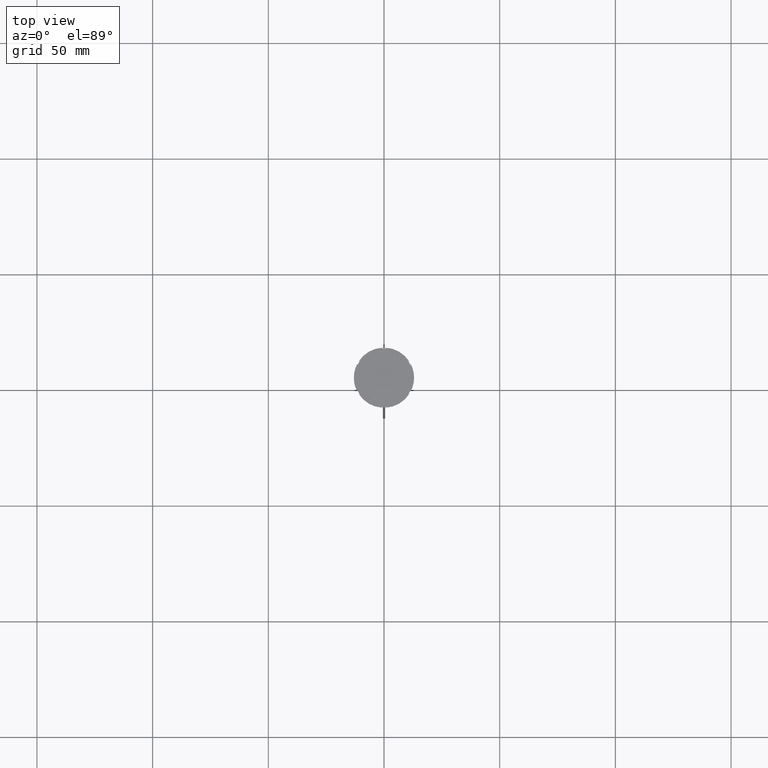
[diagram: clean part render]
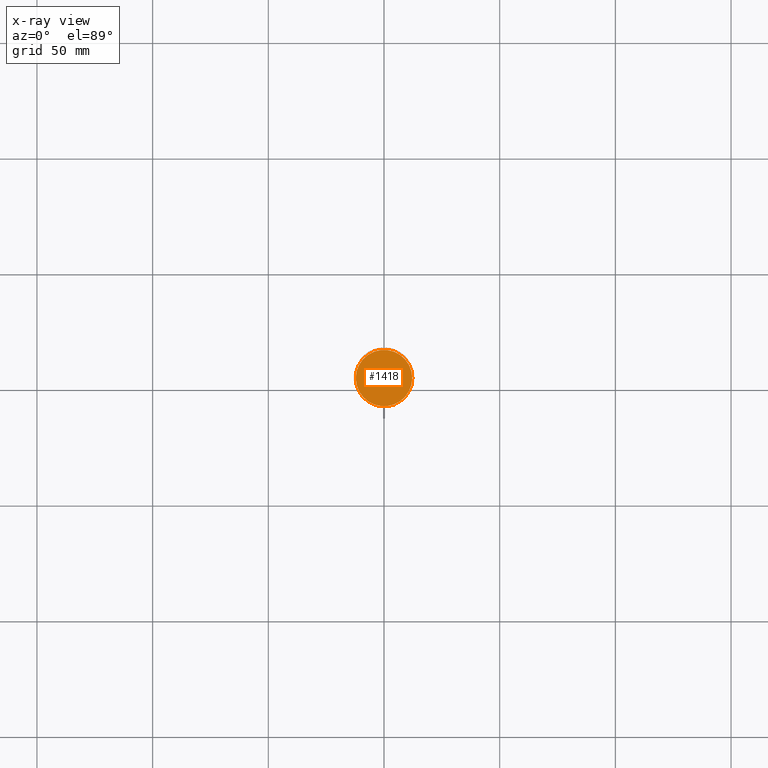
[diagram: x-ray — body ghosted, one internal face saturated and labeled with its STEP entity id]
A machine part, top view, then the same camera in x-ray: the body is ghosted and one INTERNAL B-rep face — a face not visible from any outside direction — is saturated and labeled: STEP entity #1418.
In plain terms, the highlighted planar face has unit normal (0, 0, -1).
Its self-contained STEP definition (entity closure, byte-faithful):
#29 = DIRECTION ( 'NONE',  ( -0.000000000000000000, -0.000000000000000000, 1.000000000000000000 ) ) ;
#47 = CARTESIAN_POINT ( 'NONE',  ( 0.000000000000000000, 0.000000000000000000, -12.00000000000000000 ) ) ;
#213 = CIRCLE ( 'NONE', #1475, 12.20000000000000639 ) ;
#276 = DIRECTION ( 'NONE',  ( -0.000000000000000000, -0.000000000000000000, 1.000000000000000000 ) ) ;
#417 = VERTEX_POINT ( 'NONE', #572 ) ;
#466 = CARTESIAN_POINT ( 'NONE',  ( 0.000000000000000000, 0.000000000000000000, -12.00000000000000000 ) ) ;
#537 = EDGE_CURVE ( 'NONE', #1689, #417, #2690, .T. ) ;
#566 = AXIS2_PLACEMENT_3D ( 'NONE', #47, #1775, #632 ) ;
#572 = CARTESIAN_POINT ( 'NONE',  ( -12.20000000000000639, 0.000000000000000000, -12.00000000000000000 ) ) ;
#587 = EDGE_CURVE ( 'NONE', #417, #1689, #213, .T. ) ;
#632 = DIRECTION ( 'NONE',  ( -1.000000000000000000, 0.000000000000000000, -0.000000000000000000 ) ) ;
#707 = ORIENTED_EDGE ( 'NONE', *, *, #537, .T. ) ;
#867 = ORIENTED_EDGE ( 'NONE', *, *, #587, .T. ) ;
#1331 = DIRECTION ( 'NONE',  ( -1.000000000000000000, 0.000000000000000000, 0.000000000000000000 ) ) ;
#1362 = CARTESIAN_POINT ( 'NONE',  ( 12.20000000000000639, 1.512438796946981880E-15, -12.00000000000000000 ) ) ;
#1418 = ADVANCED_FACE ( 'NONE', ( #2382 ), #2603, .F. ) ;
#1475 = AXIS2_PLACEMENT_3D ( 'NONE', #466, #276, #1331 ) ;
#1528 = AXIS2_PLACEMENT_3D ( 'NONE', #1550, #29, #2602 ) ;
#1550 = CARTESIAN_POINT ( 'NONE',  ( 0.000000000000000000, 0.000000000000000000, -12.00000000000000000 ) ) ;
#1689 = VERTEX_POINT ( 'NONE', #1362 ) ;
#1775 = DIRECTION ( 'NONE',  ( 0.000000000000000000, 0.000000000000000000, -1.000000000000000000 ) ) ;
#2382 = FACE_OUTER_BOUND ( 'NONE', #2764, .T. ) ;
#2602 = DIRECTION ( 'NONE',  ( -1.000000000000000000, 0.000000000000000000, 0.000000000000000000 ) ) ;
#2603 = PLANE ( 'NONE',  #566 ) ;
#2690 = CIRCLE ( 'NONE', #1528, 12.20000000000000639 ) ;
#2764 = EDGE_LOOP ( 'NONE', ( #867, #707 ) ) ;